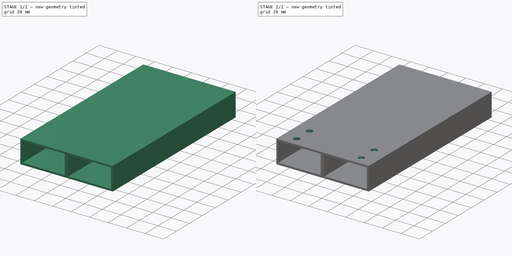
[diagram: build sequence overview — one tinted view per stage of 2, left to right]
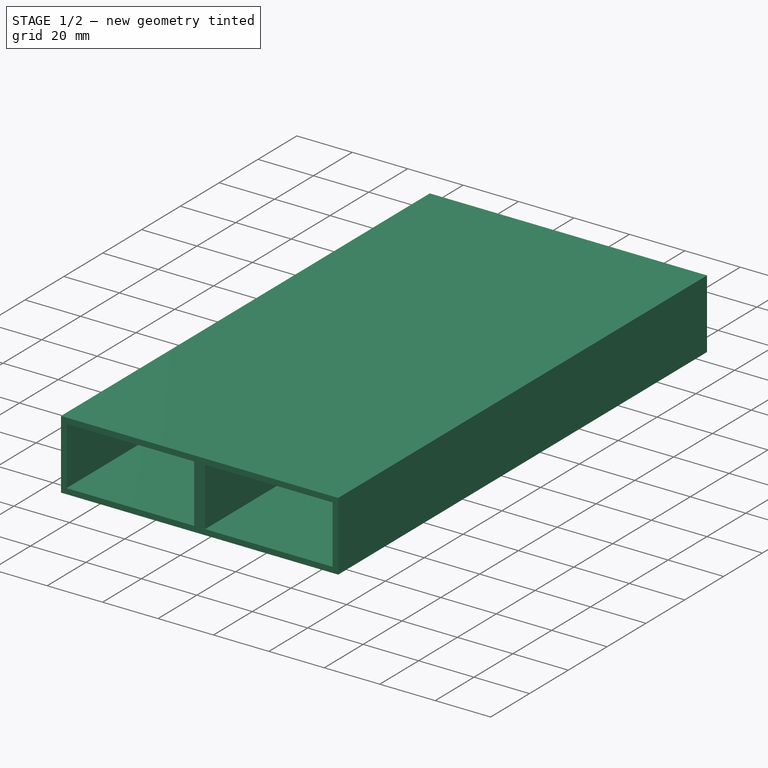
[diagram: stage 1 of 2 — iso view after this stage's code; geometry added in this stage tinted green]
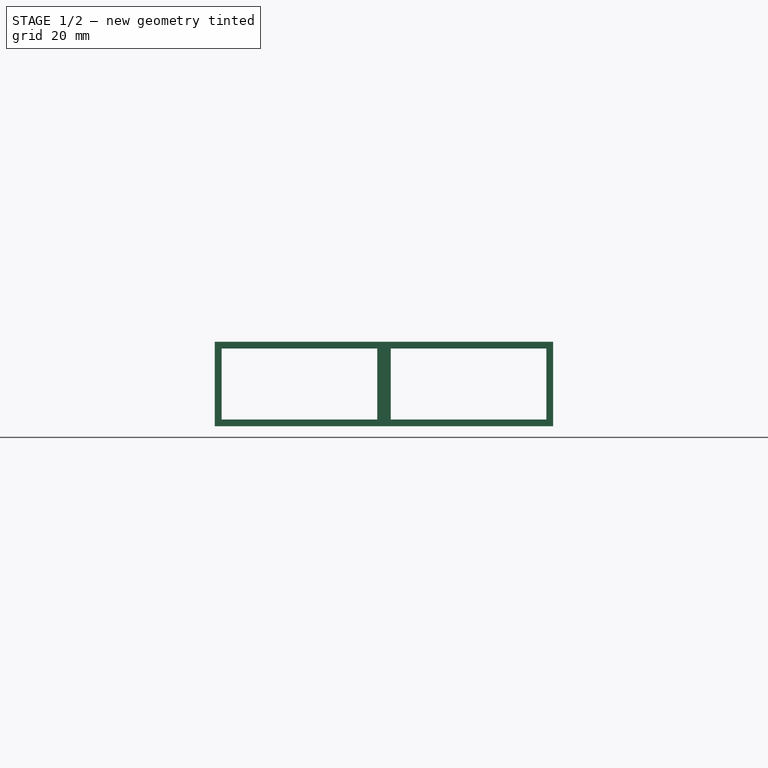
[diagram: stage 1 of 2 — front view after this stage's code; geometry added in this stage tinted green]
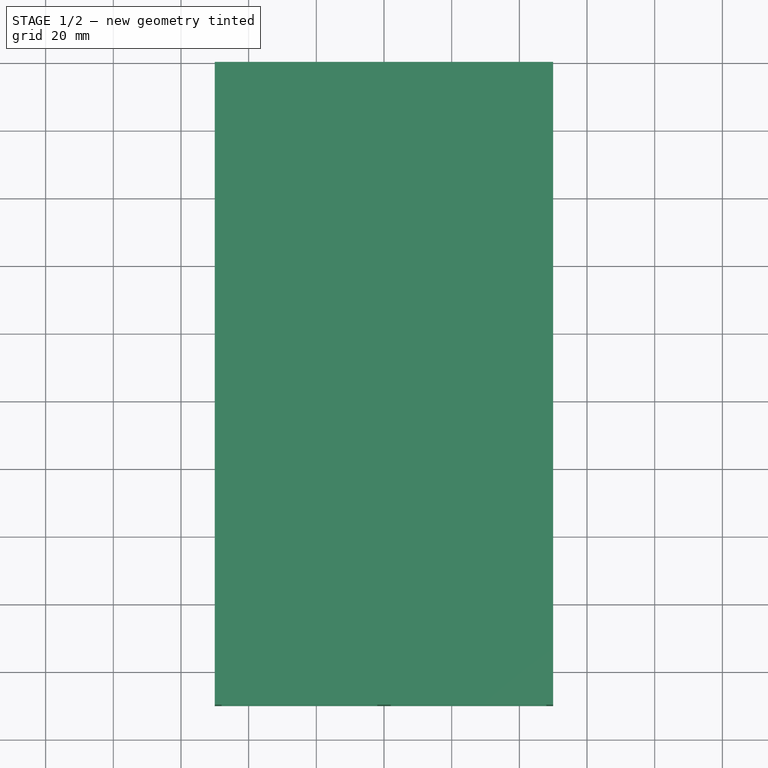
[diagram: stage 1 of 2 — top view after this stage's code; geometry added in this stage tinted green]
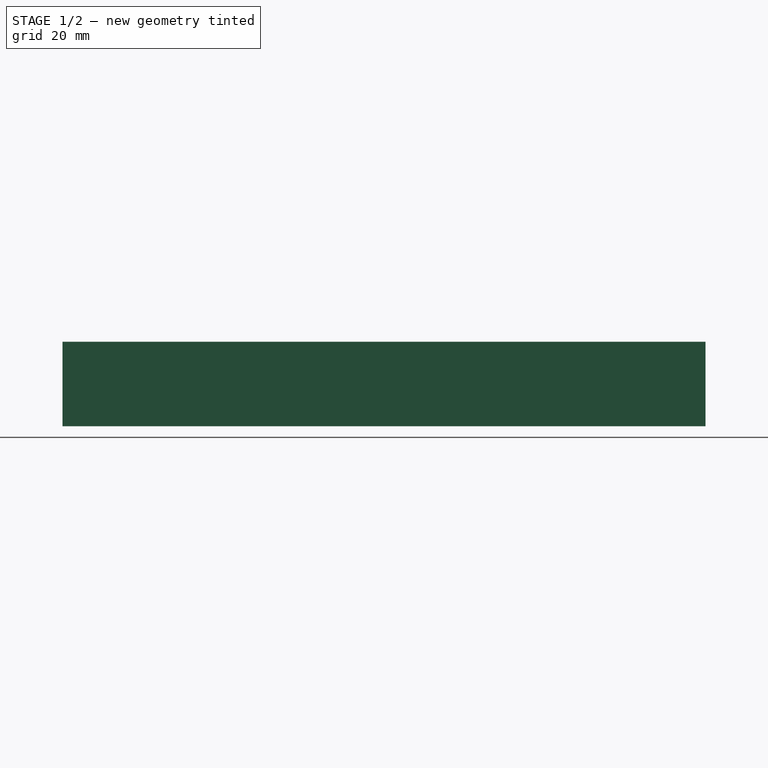
[diagram: stage 1 of 2 — right view after this stage's code; geometry added in this stage tinted green]
FCSTD DOCUMENT  (FreeCAD 0.19R)
Label: adapter_plate
License: All rights reserved
LicenseURL: http://en.wikipedia.org/wiki/All_rights_reserved
objects: PartDesign::CoordinateSystem×8, Sketcher::SketchObject×3, PartDesign::Pocket×2, PartDesign::Pad×1, PartDesign::Body×1
note: 18 computed .brp shape members not serialized (recipe doc carries the construction recipe); baked Part::Feature solids carry a one-line shape summary decoded from their .brp

FEATURE [Sketcher::SketchObject] Sketch
  FullyConstrained = true
  MapMode = 5
  Placement = pos=(0,0,0) rot=(1,0,0;1.5708rad)
  Support = -> [XZ_Plane]
  sketch-geometry (12):
    g0: LineSegment StartX=-50 StartY=25 StartZ=0 EndX=50 EndY=25 EndZ=0
    g1: LineSegment StartX=50 StartY=0 StartZ=0 EndX=-50 EndY=0 EndZ=0
    g2: LineSegment StartX=-50 StartY=0 StartZ=0 EndX=-50 EndY=25 EndZ=0
    g3: LineSegment StartX=50 StartY=25 StartZ=0 EndX=50 EndY=0 EndZ=0
    g4: LineSegment StartX=-48 StartY=23 StartZ=0 EndX=-2 EndY=23 EndZ=0
    g5: LineSegment StartX=-2 StartY=23 StartZ=0 EndX=-2 EndY=2 EndZ=0
    g6: LineSegment StartX=-2 StartY=2 StartZ=0 EndX=-48 EndY=2 EndZ=0
    g7: LineSegment StartX=-48 StartY=2 StartZ=0 EndX=-48 EndY=23 EndZ=0
    g8: LineSegment StartX=2 StartY=23 StartZ=0 EndX=48 EndY=23 EndZ=0
    g9: LineSegment StartX=48 StartY=23 StartZ=0 EndX=48 EndY=2 EndZ=0
    g10: LineSegment StartX=48 StartY=2 StartZ=0 EndX=2 EndY=2 EndZ=0
    g11: LineSegment StartX=2 StartY=2 StartZ=0 EndX=2 EndY=23 EndZ=0
  constraints (34):
    c: Coincident(g1,g2)
    c: Coincident(g2,g0)
    c: Horizontal(g0)
    c: Vertical(g2)
    c: Vertical(g3)
    c: Coincident(g1,g3)
    c: Coincident(g0,g3)
    c: Symmetric(g1,g1,g-2)
    c: PointOnObject(g1,g-1)
    c: DistanceY(g3,g3) = 25
    c: DistanceX(g0,g0) = 100
    c: Coincident(g4,g5)
    c: Coincident(g5,g6)
    c: Coincident(g6,g7)
    c: Coincident(g7,g4)
    c: Horizontal(g4)
    c: Horizontal(g6)
    c: Vertical(g5)
    c: Vertical(g7)
    c: Coincident(g8,g9)
    c: Coincident(g9,g10)
    c: Coincident(g10,g11)
    c: Coincident(g11,g8)
    c: Horizontal(g8)
    c: Horizontal(g10)
    c: Vertical(g9)
    c: Vertical(g11)
    c: DistanceY(g8,g0) = 2
    c: DistanceX(g9,g1) = 2
    c: DistanceY(g1,g9) = 2
    c: DistanceX(g5,g10) = 4
    c: DistanceX(g1,g6) = 2
    c: DistanceY(g1,g6) = 2
    c: Symmetric(g8,g4,g-2)
FEATURE [PartDesign::Pad] Pad
  Direction = (1,1,1)
  Length = 190
  Length2 = 100
  Placement = pos=(0,0,0) rot=(1,0,0;1.5708rad)
  Profile = -> Sketch
  Type = 0
FEATURE [Sketcher::SketchObject] Sketch001
  FullyConstrained = true
  MapMode = 5
  Placement = pos=(0,0,0) rot=(1,0,0;3.14159rad)
  Support = -> [Pad]
  sketch-geometry (7):
    g0: Circle CenterX=-29.9821 CenterY=90 CenterZ=0 NormalX=0 NormalY=0 NormalZ=1 AngleXU=0 Radius=2.75
    g1: Circle CenterX=30.0179 CenterY=89.9866 CenterZ=0 NormalX=0 NormalY=0 NormalZ=1 AngleXU=0 Radius=2.75
    g2: LineSegment StartX=-29.9821 StartY=90 StartZ=0 EndX=30.0179 EndY=89.9866 EndZ=0
    g3: Circle CenterX=-30 CenterY=10 CenterZ=0 NormalX=0 NormalY=0 NormalZ=1 AngleXU=0 Radius=2.75
    g4: LineSegment StartX=-29.9821 StartY=90 StartZ=0 EndX=-30 EndY=10 EndZ=0
    g5: Circle CenterX=30 CenterY=9.98658 CenterZ=0 NormalX=0 NormalY=0 NormalZ=1 AngleXU=0 Radius=2.75
    g6: LineSegment StartX=-30 StartY=10 StartZ=0 EndX=30 EndY=9.98658 EndZ=0
  constraints (18):
    c: Diameter(g0) = 5.5
    c: Diameter(g1) = 5.5
    c: Coincident(g0,g2)
    c: Coincident(g1,g2)
    c: Distance(g2) = 60
    c: Angle(g2) = -0.000223728
    c: Diameter(g3) = 5.5
    c: Coincident(g0,g4)
    c: Coincident(g3,g4)
    c: Distance(g4) = 80
    c: Perpendicular(g4,g2)
    c: Diameter(g5) = 5.5
    c: Coincident(g3,g6)
    c: Coincident(g5,g6)
    c: Equal(g2,g6)
    c: Parallel(g6,g2)
    c: DistanceX(g3,g-1) = 30
    c: DistanceY(g-1,g3) = 10
FEATURE [PartDesign::Pocket] Pocket
  BaseFeature = -> Pad
  Length = 2
  Length2 = 100
  Placement = pos=(0,0,0) rot=(1,0,0;1.5708rad)
  Profile = -> Sketch001
  Type = 0
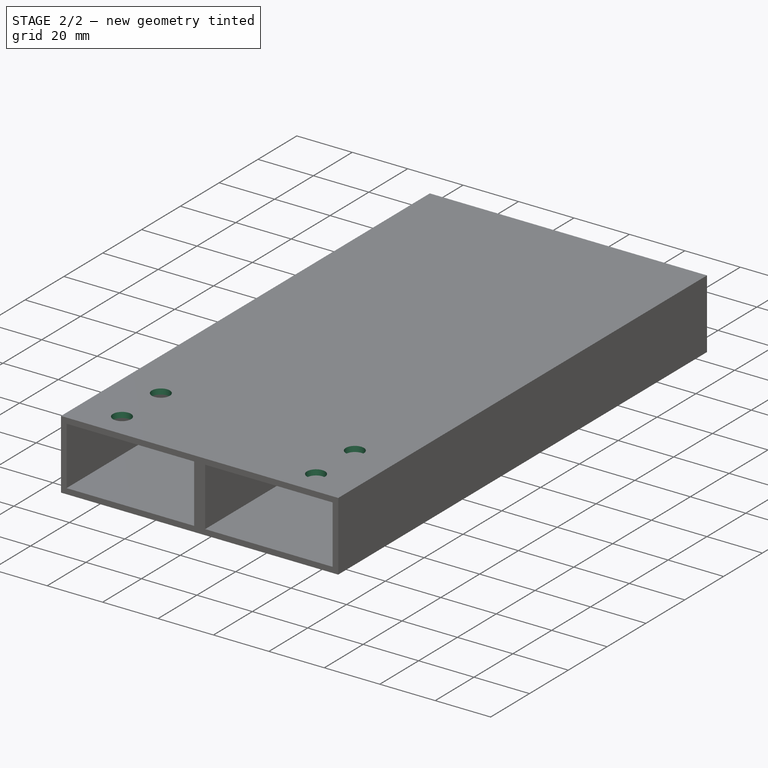
[diagram: stage 2 of 2 — iso view after this stage's code; geometry added in this stage tinted green]
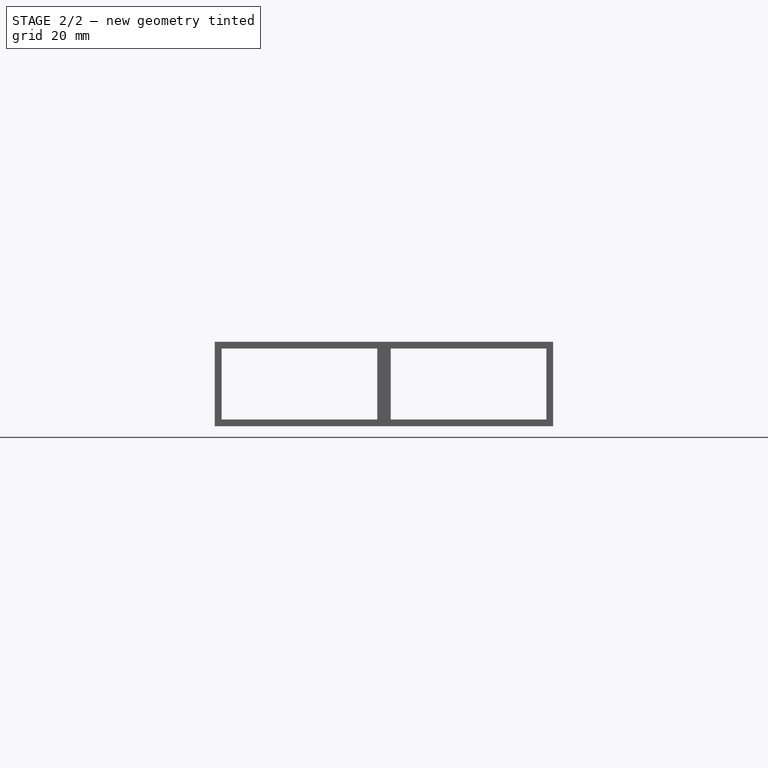
[diagram: stage 2 of 2 — front view after this stage's code; geometry added in this stage tinted green]
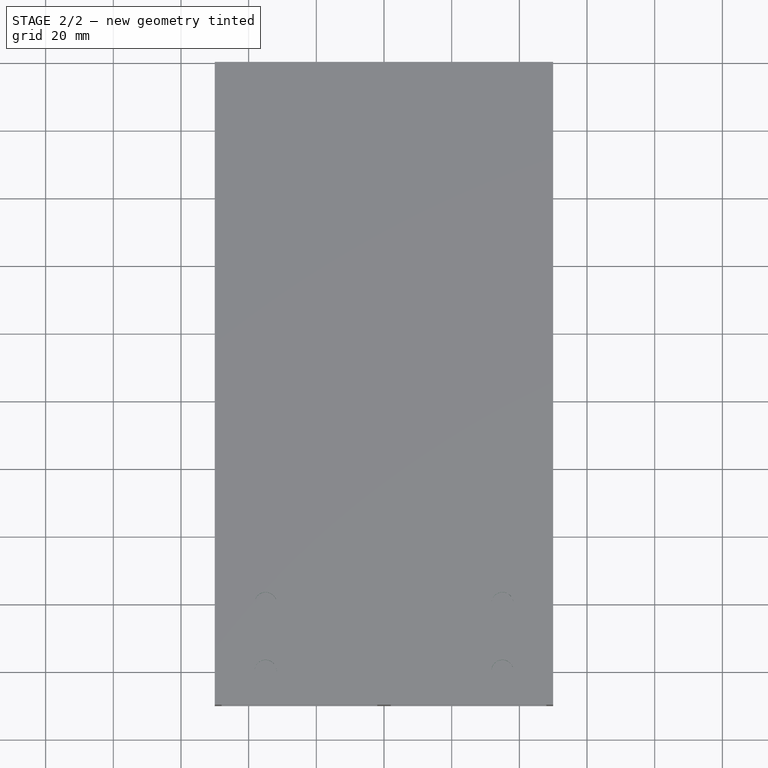
[diagram: stage 2 of 2 — top view after this stage's code; geometry added in this stage tinted green]
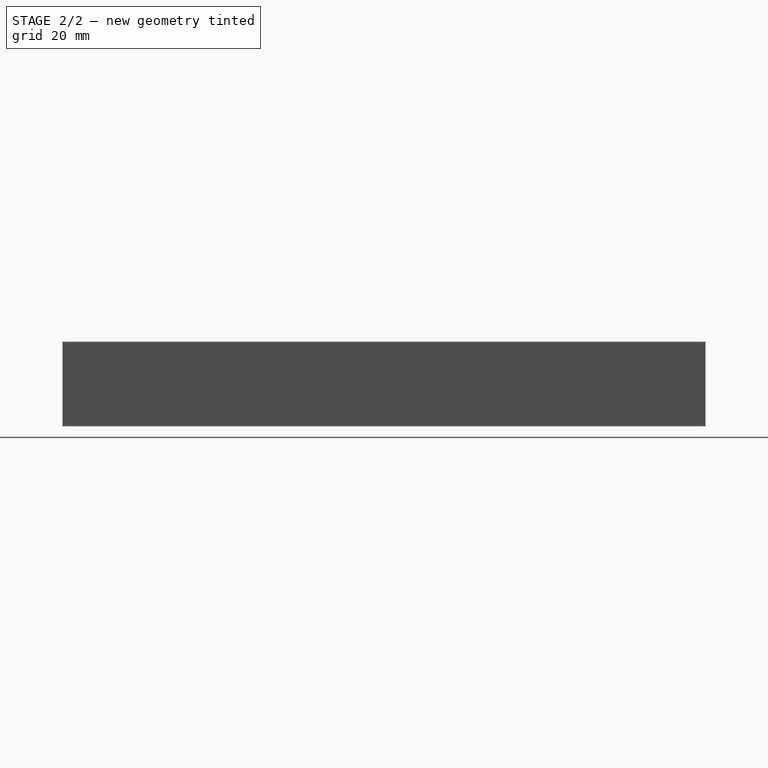
[diagram: stage 2 of 2 — right view after this stage's code; geometry added in this stage tinted green]
FEATURE [Sketcher::SketchObject] Sketch002
  ExternalGeometry = -> [Pocket]
  FullyConstrained = true
  MapMode = 5
  Placement = pos=(0,0,25) rot=(0,0,1;3.14159rad)
  Support = -> [Pocket]
  sketch-geometry (7):
    g0: Circle CenterX=-35 CenterY=180 CenterZ=0 NormalX=0 NormalY=0 NormalZ=1 AngleXU=0 Radius=3.25
    g1: Circle CenterX=35 CenterY=180 CenterZ=0 NormalX=0 NormalY=0 NormalZ=1 AngleXU=0 Radius=3.25
    g2: LineSegment StartX=-35 StartY=180 StartZ=0 EndX=35 EndY=180 EndZ=0
    g3: Circle CenterX=-35 CenterY=160 CenterZ=0 NormalX=0 NormalY=0 NormalZ=1 AngleXU=0 Radius=3.25
    g4: LineSegment StartX=-35 StartY=180 StartZ=0 EndX=-35 EndY=160 EndZ=0
    g5: Circle CenterX=35 CenterY=160 CenterZ=0 NormalX=0 NormalY=0 NormalZ=1 AngleXU=0 Radius=3.25
    g6: LineSegment StartX=-35 StartY=160 StartZ=0 EndX=35 EndY=160 EndZ=0
  constraints (18):
    c: Diameter(g0) = 6.5
    c: Diameter(g1) = 6.5
    c: Coincident(g0,g2)
    c: Coincident(g1,g2)
    c: Distance(g2) = 70
    c: Angle(g2) = 0
    c: Diameter(g3) = 6.5
    c: Coincident(g0,g4)
    c: Coincident(g3,g4)
    c: Distance(g4) = 20
    c: Perpendicular(g4,g2)
    c: Diameter(g5) = 6.5
    c: Coincident(g3,g6)
    c: Coincident(g5,g6)
    c: Equal(g2,g6)
    c: Parallel(g6,g2)
    c: DistanceY(g1,g-3) = 10
    c: Symmetric(g0,g1,g-2)
FEATURE [PartDesign::Pocket] Pocket001
  BaseFeature = -> Pocket
  Length = 2
  Length2 = 100
  Placement = pos=(0,0,0) rot=(1,0,0;1.5708rad)
  Profile = -> Sketch002
  Type = 0
FEATURE [PartDesign::CoordinateSystem] LCS_1
  AttacherType = Attacher::AttachEngine3D
  MapMode = 11
  Placement = pos=(-35,-180,25) rot=(0,0,-1;1.5708rad)
  Support = -> [Pocket001]
FEATURE [PartDesign::CoordinateSystem] LCS_2
  AttacherType = Attacher::AttachEngine3D
  MapMode = 11
  Placement = pos=(35,-180,25) rot=(0,0,-1;1.5708rad)
  Support = -> [Pocket001]
FEATURE [PartDesign::CoordinateSystem] LCS_3
  AttacherType = Attacher::AttachEngine3D
  MapMode = 11
  Placement = pos=(-35,-160,25) rot=(0,0,-1;1.5708rad)
  Support = -> [Pocket001]
FEATURE [PartDesign::CoordinateSystem] LCS_4
  AttacherType = Attacher::AttachEngine3D
  MapMode = 11
  Placement = pos=(35,-160,25) rot=(0,0,-1;1.5708rad)
  Support = -> [Pocket001]
FEATURE [PartDesign::CoordinateSystem] LCS_5
  AttacherType = Attacher::AttachEngine3D
  MapMode = 11
  Placement = pos=(30.0179,-89.9866,0) rot=(0.707107,-0.707107,0;3.14159rad)
  Support = -> [Pocket001]
FEATURE [PartDesign::CoordinateSystem] LCS_6
  AttacherType = Attacher::AttachEngine3D
  MapMode = 11
  Placement = pos=(-29.9821,-90,0) rot=(0.707107,-0.707107,0;3.14159rad)
  Support = -> [Pocket001]
FEATURE [PartDesign::CoordinateSystem] LCS_7
  AttacherType = Attacher::AttachEngine3D
  MapMode = 11
  Placement = pos=(30,-9.98658,0) rot=(0.707107,-0.707107,0;3.14159rad)
  Support = -> [Pocket001]
FEATURE [PartDesign::CoordinateSystem] LCS_8
  AttacherType = Attacher::AttachEngine3D
  MapMode = 11
  Placement = pos=(-30,-10,0) rot=(0.707107,-0.707107,0;3.14159rad)
  Support = -> [Pocket001]
FEATURE [PartDesign::Body] Body
  Group = -> [Sketch,Pad,Sketch001,Pocket,Sketch002,Pocket001,LCS_1,LCS_2,LCS_3,LCS_4,LCS_5,LCS_6,LCS_7,LCS_8]
  Origin = -> Origin
  Tip = -> Pocket001
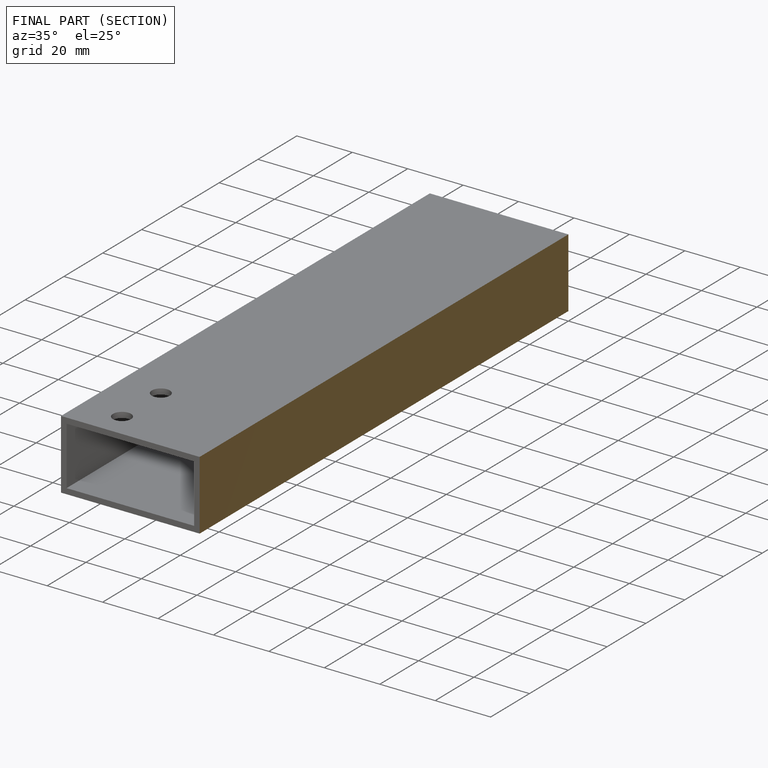
[diagram: finished part — half-section view (interior)]
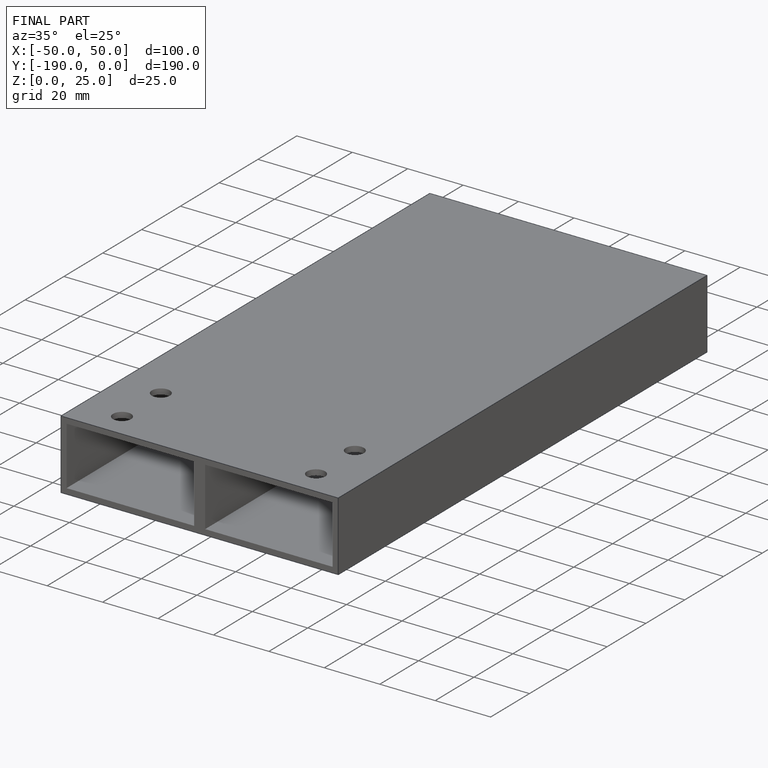
[diagram: finished part — iso view with bounding-box wireframe]
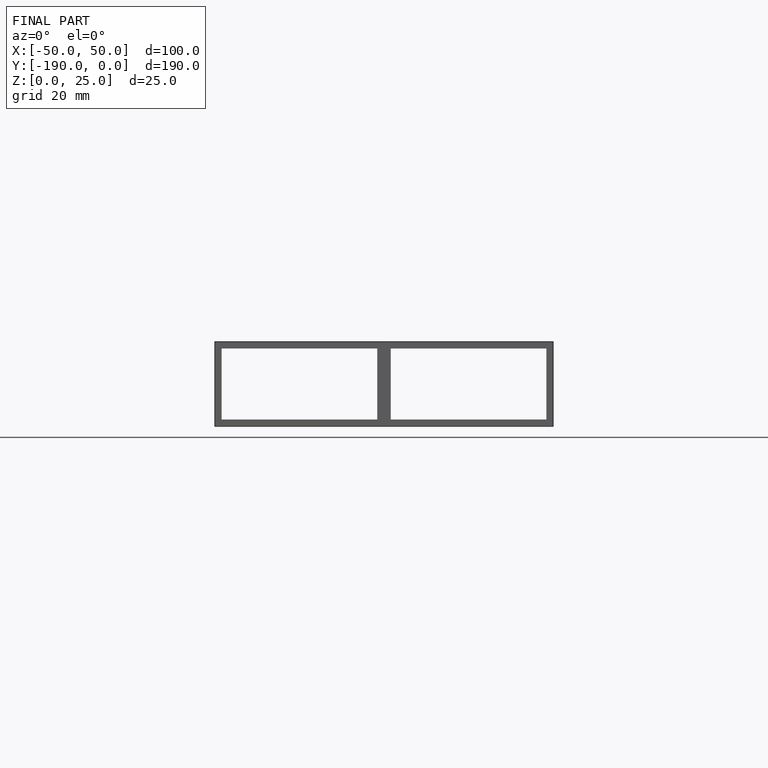
[diagram: finished part — front view with bounding-box wireframe]
